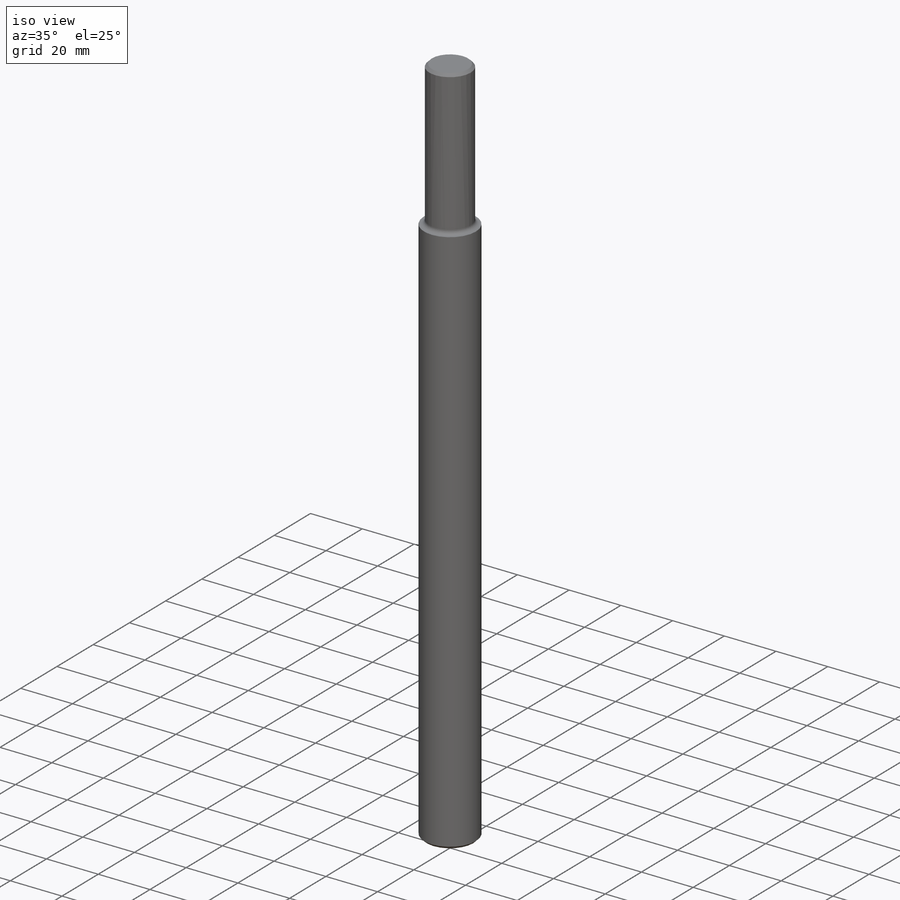
[diagram: iso view]
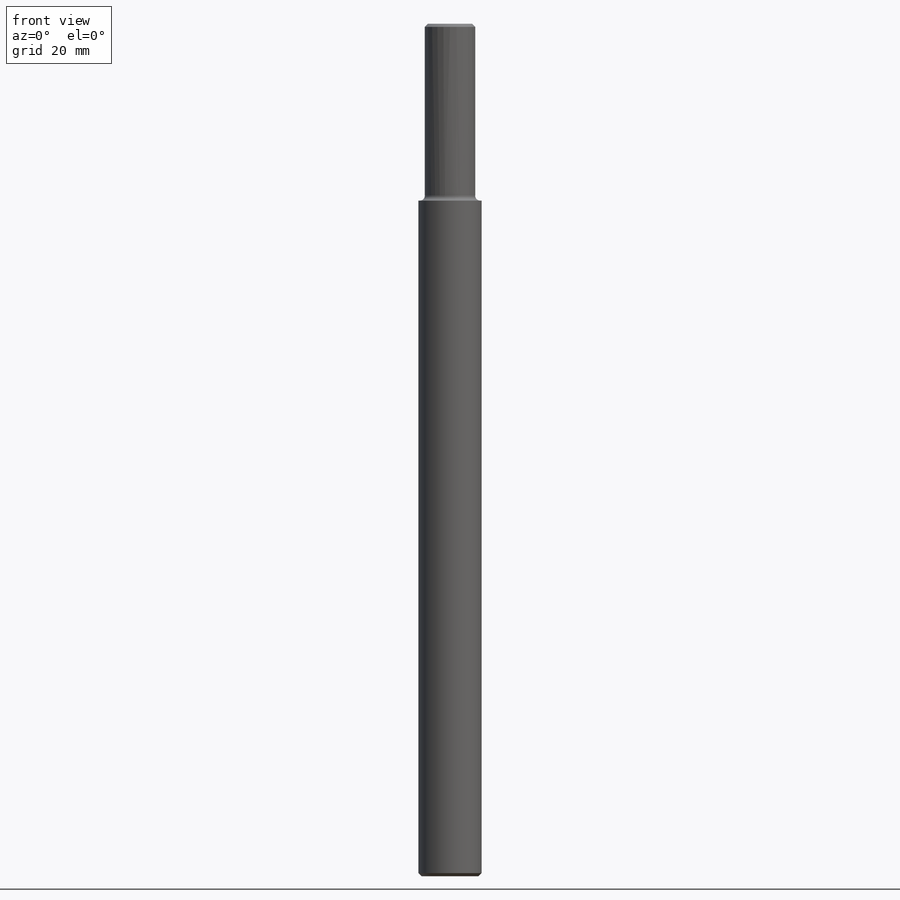
[diagram: front view]
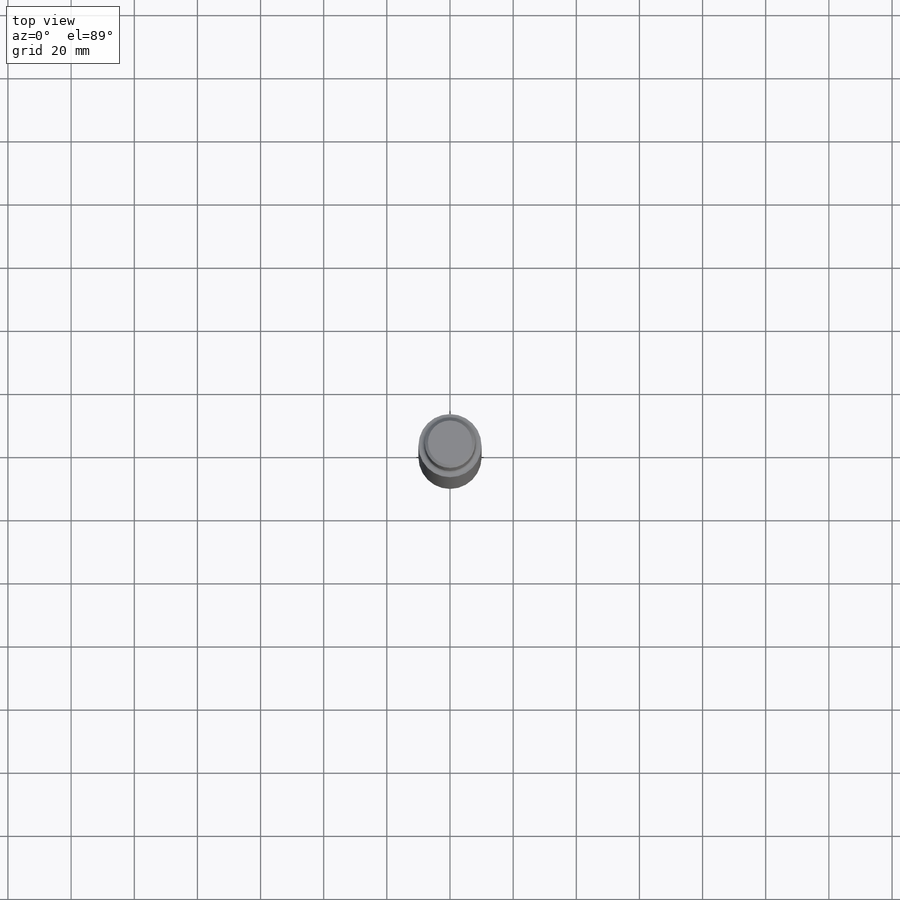
[diagram: top view]
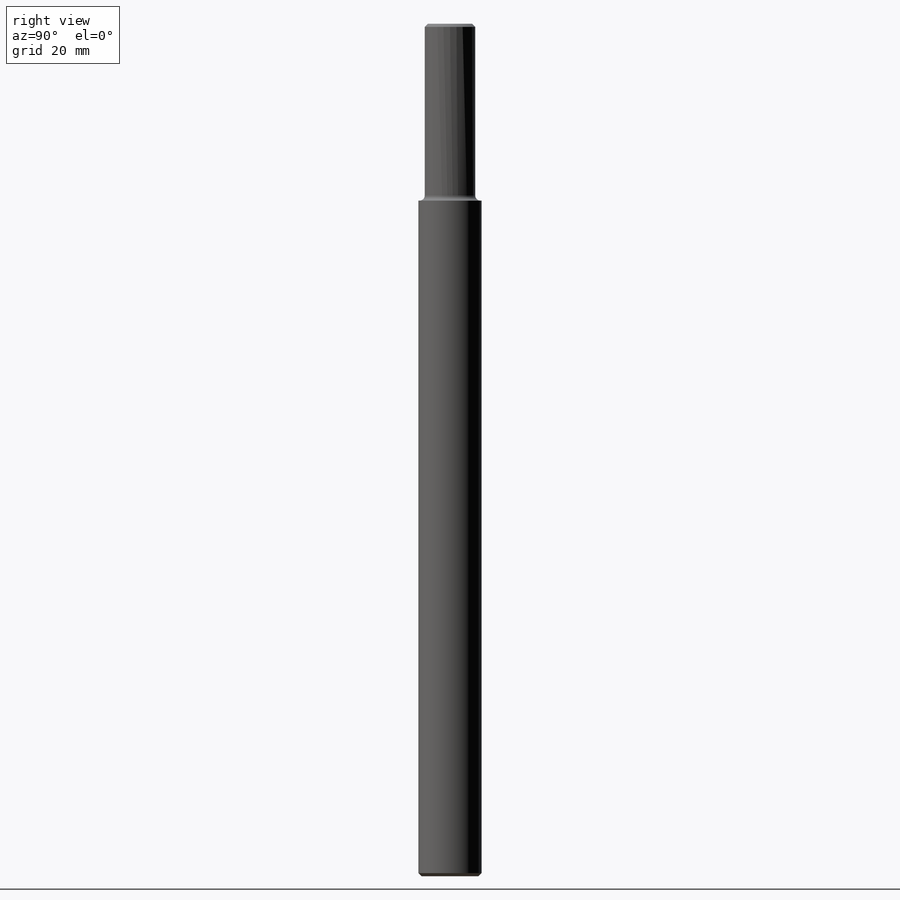
[diagram: right view]
SOLIDWORKS PART (.sldprt)
format: sldprt  version: not decoded by parser v0  size: 119,808 bytes
history: native  units: mm
features: material x4, sketch x2, plane x1, extrude x1, cut_extrude x1, thread x1, fillet x1, chamfer x1 + 1 further entry (+10 scaffold rows collapsed)
feature tree (23):
  scaffold x10  (default folders/planes/origin — collapsed)
  material  " 40Х ГОСТ 4543-71"
  material  "PTricksFreeParameters"
  material  "PTricksEqu"
  material  "PTricksFreeParameters"
  plane  "Спереди"
  "Начало координат"
  sketch  "Эскиз1"  dims[D1=20.0mm]
  extrude  "Вытянуть1"  Depth=270mm
  sketch  "Эскиз2"  dims[D1=16.0mm]
  cut_extrude  "Вытянуть2"  [1 undecoded]
  thread  "Условное изображение резьбы1"  Diameter=54mm  [1 undecoded]
  fillet  "Скругление1"  Radius=1.6mm
  chamfer  "Фаска1"  Distance=1mm Angle=45deg
decode coverage: 6 of 7 modeling features carry decoded parameters; 1 rows unclassified (native names shown)
note: 2 parameter values undecoded
note: suppression state not decoded; provenance and decode notes live in map.json
